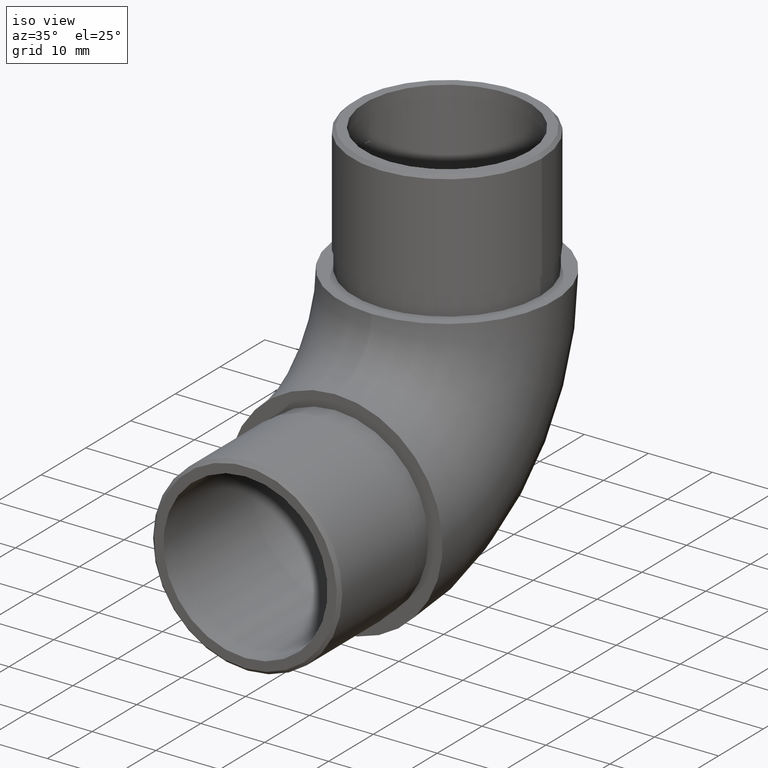
[diagram: clean part render]
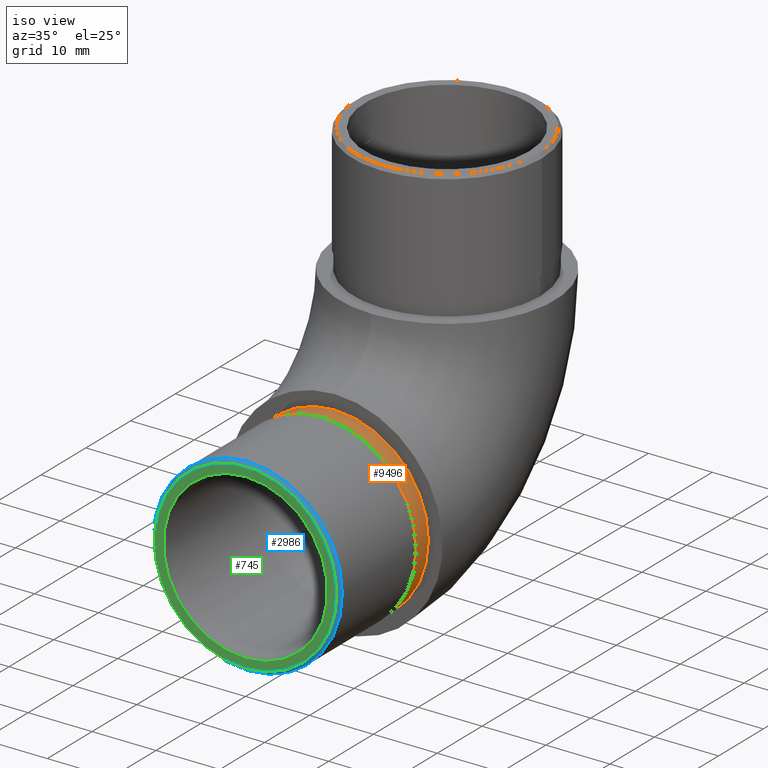
[diagram: same view with three faces highlighted in distinct colors, each labeled with its STEP entity id]
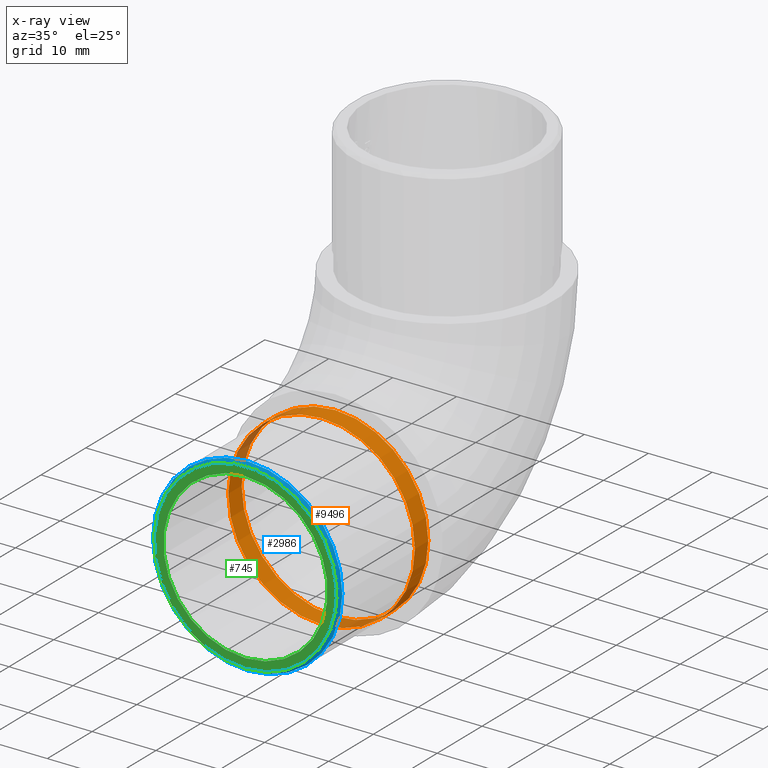
[diagram: x-ray of the same camera — body ghosted, the three highlighted faces saturated]
A machine part, iso view with three faces highlighted in distinct colors.
The next image is the same camera in x-ray (body ghosted, the three faces saturated) — at least one of them is partly hidden behind the body in this view.
Their STEP definitions:

[orange] entity #9496 — the highlighted cylindrical surface (bore or boss wall) has radius 14.6 mm, axis along (-0, 1, -0).
#1637 = DIRECTION ( 'NONE',  ( -0.0000000000000000000, -1.000000000000000000, -0.0000000000000000000 ) ) ;
#1975 = VERTEX_POINT ( 'NONE', #14733 ) ;
#1988 = AXIS2_PLACEMENT_3D ( 'NONE', #5594, #5449, #13648 ) ;
#2198 = CIRCLE ( 'NONE', #2851, 14.60000000000000100 ) ;
#2242 = EDGE_CURVE ( 'NONE', #1975, #1975, #13115, .T. ) ;
#2384 = CARTESIAN_POINT ( 'NONE',  ( 0.0000000000000000000, 0.0000000000000000000, 31.45000000000000600 ) ) ;
#2556 = CYLINDRICAL_SURFACE ( 'NONE', #1988, 14.60000000000000100 ) ;
#2851 = AXIS2_PLACEMENT_3D ( 'NONE', #13109, #1637, #9683 ) ;
#4733 = FACE_OUTER_BOUND ( 'NONE', #5814, .T. ) ;
#4987 = CARTESIAN_POINT ( 'NONE',  ( 0.0000000000000000000, -3.000000000000000000, 16.85000000000000500 ) ) ;
#5050 = VERTEX_POINT ( 'NONE', #2384 ) ;
#5449 = DIRECTION ( 'NONE',  ( -0.0000000000000000000, 1.000000000000000000, -0.0000000000000000000 ) ) ;
#5594 = CARTESIAN_POINT ( 'NONE',  ( 0.0000000000000000000, -3.000000000000000000, 16.85000000000000500 ) ) ;
#5814 = EDGE_LOOP ( 'NONE', ( #9042 ) ) ;
#7757 = FACE_OUTER_BOUND ( 'NONE', #10633, .T. ) ;
#8984 = AXIS2_PLACEMENT_3D ( 'NONE', #4987, #13025, #14212 ) ;
#9042 = ORIENTED_EDGE ( 'NONE', *, *, #9292, .T. ) ;
#9292 = EDGE_CURVE ( 'NONE', #5050, #5050, #2198, .T. ) ;
#9496 = ADVANCED_FACE ( 'NONE', ( #7757, #4733 ), #2556, .T. ) ;
#9683 = DIRECTION ( 'NONE',  ( 0.0000000000000000000, 0.0000000000000000000, 1.000000000000000000 ) ) ;
#10633 = EDGE_LOOP ( 'NONE', ( #12836 ) ) ;
#12836 = ORIENTED_EDGE ( 'NONE', *, *, #2242, .F. ) ;
#13025 = DIRECTION ( 'NONE',  ( 0.0000000000000000000, -1.000000000000000000, 0.0000000000000000000 ) ) ;
#13109 = CARTESIAN_POINT ( 'NONE',  ( 0.0000000000000000000, 0.0000000000000000000, 16.85000000000000500 ) ) ;
#13115 = CIRCLE ( 'NONE', #8984, 14.60000000000000100 ) ;
#13648 = DIRECTION ( 'NONE',  ( 0.0000000000000000000, 0.0000000000000000000, 1.000000000000000000 ) ) ;
#14212 = DIRECTION ( 'NONE',  ( 0.0000000000000000000, 0.0000000000000000000, -1.000000000000000000 ) ) ;
#14733 = CARTESIAN_POINT ( 'NONE',  ( 0.0000000000000000000, -3.000000000000000000, 2.250000000000001800 ) ) ;

[blue] entity #2986 — the highlighted conical surface has half-angle 45 deg.
#1532 = EDGE_LOOP ( 'NONE', ( #11208 ) ) ;
#2334 = EDGE_CURVE ( 'NONE', #9543, #9543, #9505, .T. ) ;
#2986 = ADVANCED_FACE ( 'NONE', ( #6779, #14210 ), #13447, .T. ) ;
#3905 = ORIENTED_EDGE ( 'NONE', *, *, #5037, .F. ) ;
#4431 = CARTESIAN_POINT ( 'NONE',  ( 0.0000000000000000000, -20.00000000000000000, 16.85000000000000500 ) ) ;
#4596 = AXIS2_PLACEMENT_3D ( 'NONE', #4431, #5575, #12463 ) ;
#5037 = EDGE_CURVE ( 'NONE', #7709, #7709, #9265, .T. ) ;
#5575 = DIRECTION ( 'NONE',  ( 0.0000000000000000000, 1.000000000000000000, 0.0000000000000000000 ) ) ;
#6779 = FACE_OUTER_BOUND ( 'NONE', #8715, .T. ) ;
#6885 = CARTESIAN_POINT ( 'NONE',  ( 0.0000000000000000000, -20.00000000000000000, 16.85000000000000500 ) ) ;
#6928 = DIRECTION ( 'NONE',  ( 0.0000000000000000000, -1.000000000000000000, 0.0000000000000000000 ) ) ;
#7709 = VERTEX_POINT ( 'NONE', #9159 ) ;
#8697 = CARTESIAN_POINT ( 'NONE',  ( 0.0000000000000000000, -19.50000000000000400, 16.85000000000000500 ) ) ;
#8715 = EDGE_LOOP ( 'NONE', ( #3905 ) ) ;
#9159 = CARTESIAN_POINT ( 'NONE',  ( 0.0000000000000000000, -19.50000000000000400, 2.050000000000003400 ) ) ;
#9262 = CARTESIAN_POINT ( 'NONE',  ( 0.0000000000000000000, -20.00000000000000000, 2.550000000000010500 ) ) ;
#9265 = CIRCLE ( 'NONE', #10672, 14.80000000000000100 ) ;
#9505 = CIRCLE ( 'NONE', #11311, 14.29999999999999400 ) ;
#9543 = VERTEX_POINT ( 'NONE', #9262 ) ;
#10672 = AXIS2_PLACEMENT_3D ( 'NONE', #8697, #12057, #13261 ) ;
#11208 = ORIENTED_EDGE ( 'NONE', *, *, #2334, .F. ) ;
#11311 = AXIS2_PLACEMENT_3D ( 'NONE', #6885, #6928, #11565 ) ;
#11565 = DIRECTION ( 'NONE',  ( 0.0000000000000000000, 0.0000000000000000000, -1.000000000000000000 ) ) ;
#12057 = DIRECTION ( 'NONE',  ( 0.0000000000000000000, 1.000000000000000000, 0.0000000000000000000 ) ) ;
#12463 = DIRECTION ( 'NONE',  ( 0.0000000000000000000, 0.0000000000000000000, 1.000000000000000000 ) ) ;
#13261 = DIRECTION ( 'NONE',  ( 0.0000000000000000000, 0.0000000000000000000, -1.000000000000000000 ) ) ;
#13447 = CONICAL_SURFACE ( 'NONE', #4596, 14.29999999999999400, 0.7853981633974587200 ) ;
#14210 = FACE_BOUND ( 'NONE', #1532, .T. ) ;

[green] entity #745 — the highlighted planar face has unit normal (0, -1, 0).
#492 = ORIENTED_EDGE ( 'NONE', *, *, #2334, .T. ) ;
#583 = DIRECTION ( 'NONE',  ( 0.0000000000000000000, -1.000000000000000000, 0.0000000000000000000 ) ) ;
#745 = ADVANCED_FACE ( 'NONE', ( #1446, #1788 ), #4974, .T. ) ;
#1217 = AXIS2_PLACEMENT_3D ( 'NONE', #4176, #13480, #1964 ) ;
#1446 = FACE_OUTER_BOUND ( 'NONE', #6934, .T. ) ;
#1788 = FACE_BOUND ( 'NONE', #7672, .T. ) ;
#1964 = DIRECTION ( 'NONE',  ( 0.0000000000000000000, 0.0000000000000000000, -1.000000000000000000 ) ) ;
#2334 = EDGE_CURVE ( 'NONE', #9543, #9543, #9505, .T. ) ;
#2911 = ORIENTED_EDGE ( 'NONE', *, *, #3394, .F. ) ;
#3394 = EDGE_CURVE ( 'NONE', #11138, #11138, #9096, .T. ) ;
#4059 = CARTESIAN_POINT ( 'NONE',  ( 0.0000000000000000000, -20.00000000000000000, 16.85000000000000500 ) ) ;
#4176 = CARTESIAN_POINT ( 'NONE',  ( 0.0000000000000000000, -20.00000000000000000, 16.85000000000000500 ) ) ;
#4974 = PLANE ( 'NONE',  #11197 ) ;
#6885 = CARTESIAN_POINT ( 'NONE',  ( 0.0000000000000000000, -20.00000000000000000, 16.85000000000000500 ) ) ;
#6928 = DIRECTION ( 'NONE',  ( 0.0000000000000000000, -1.000000000000000000, 0.0000000000000000000 ) ) ;
#6934 = EDGE_LOOP ( 'NONE', ( #492 ) ) ;
#7672 = EDGE_LOOP ( 'NONE', ( #2911 ) ) ;
#8644 = DIRECTION ( 'NONE',  ( 0.0000000000000000000, -0.0000000000000000000, -1.000000000000000000 ) ) ;
#9096 = CIRCLE ( 'NONE', #1217, 12.85000000000000000 ) ;
#9262 = CARTESIAN_POINT ( 'NONE',  ( 0.0000000000000000000, -20.00000000000000000, 2.550000000000010500 ) ) ;
#9505 = CIRCLE ( 'NONE', #11311, 14.29999999999999400 ) ;
#9543 = VERTEX_POINT ( 'NONE', #9262 ) ;
#11138 = VERTEX_POINT ( 'NONE', #14781 ) ;
#11197 = AXIS2_PLACEMENT_3D ( 'NONE', #4059, #583, #8644 ) ;
#11311 = AXIS2_PLACEMENT_3D ( 'NONE', #6885, #6928, #11565 ) ;
#11565 = DIRECTION ( 'NONE',  ( 0.0000000000000000000, 0.0000000000000000000, -1.000000000000000000 ) ) ;
#13480 = DIRECTION ( 'NONE',  ( 0.0000000000000000000, -1.000000000000000000, 0.0000000000000000000 ) ) ;
#14781 = CARTESIAN_POINT ( 'NONE',  ( 0.0000000000000000000, -20.00000000000000000, 4.000000000000003600 ) ) ;